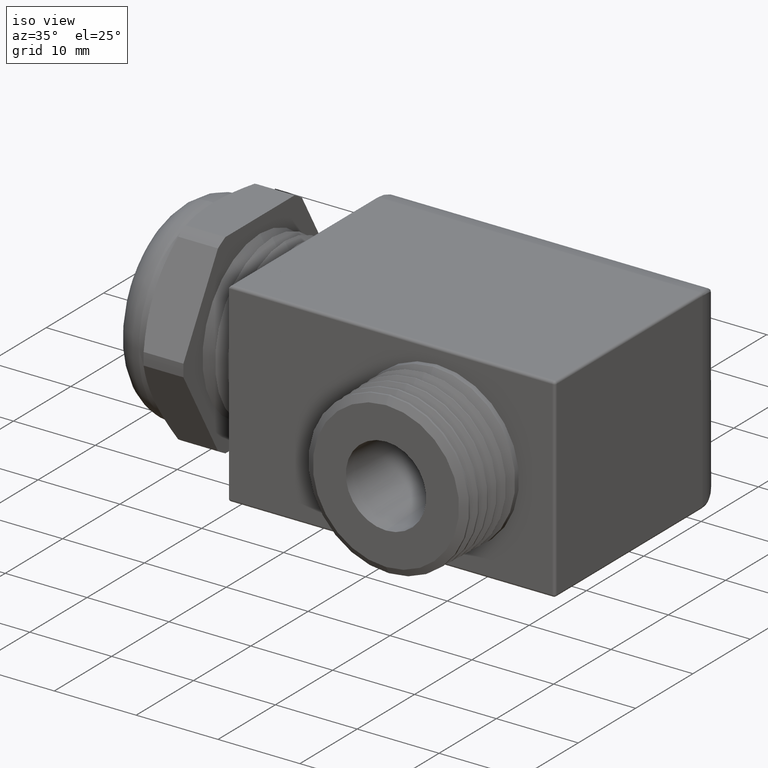
[diagram: clean part render]
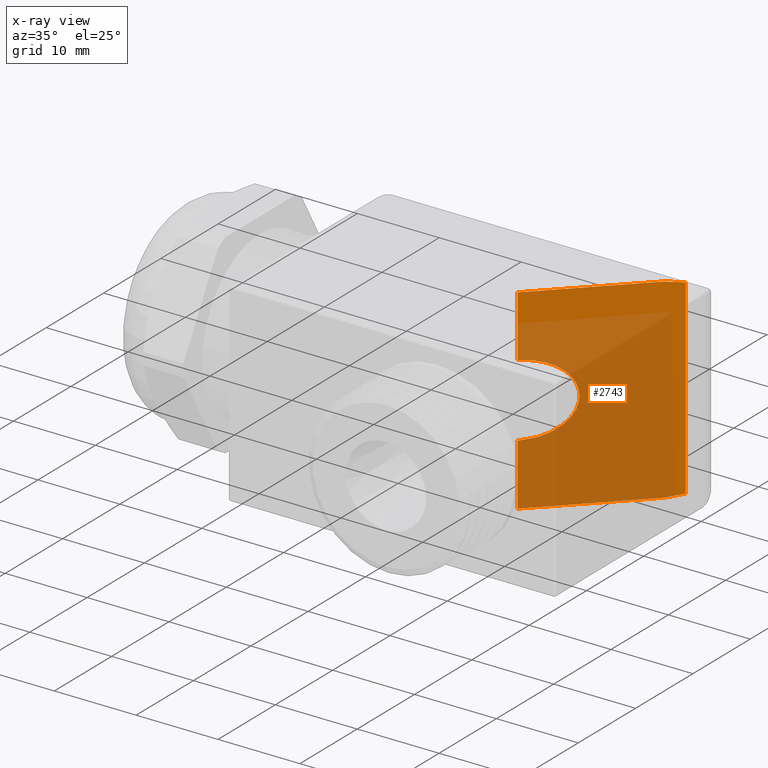
[diagram: x-ray — body ghosted, one internal face saturated and labeled with its STEP entity id]
A machine part, iso view, then the same camera in x-ray: the body is ghosted and one INTERNAL B-rep face — a face not visible from any outside direction — is saturated and labeled: STEP entity #2743.
In plain terms, the highlighted planar face has unit normal (-0.7071, 0.7071, 0).
Its self-contained STEP definition (entity closure, byte-faithful):
#152 = CARTESIAN_POINT ( 'NONE',  ( 0.9679999999999948600, 0.0000000000000000000, -0.1750000000000000700 ) ) ;
#153 = CARTESIAN_POINT ( 'NONE',  ( 0.9679999999999949800, 1.222686989034450500E-017, 0.1749999999999999900 ) ) ;
#784 = CARTESIAN_POINT ( 'NONE',  ( 1.317999999999998700, 0.3499999999999999800, -0.1749999999999999300 ) ) ;
#811 = VECTOR ( 'NONE', #839, 39.37007874015748100 ) ;
#812 = CARTESIAN_POINT ( 'NONE',  ( 1.443555555555555500, 0.4755555555555555100, -0.4703937007874016100 ) ) ;
#813 = LINE ( 'NONE', #812, #811 ) ;
#815 = DIRECTION ( 'NONE',  ( 0.0000000000000000000, 0.0000000000000000000, 1.000000000000000000 ) ) ;
#816 = VECTOR ( 'NONE', #815, 39.37007874015748100 ) ;
#824 =( BOUNDED_CURVE ( )  B_SPLINE_CURVE ( 3, ( #837, #784, #852, #851 ),
 .UNSPECIFIED., .F., .F. ) 
 B_SPLINE_CURVE_WITH_KNOTS ( ( 4, 4 ),
 ( 1.570796326794896800, 4.712388980384689700 ),
 .UNSPECIFIED. ) 
 CURVE ( )  GEOMETRIC_REPRESENTATION_ITEM ( )  RATIONAL_B_SPLINE_CURVE ( ( 1.000000000000000000, 0.3333333333333333100, 0.3333333333333333100, 1.000000000000000000 ) ) 
 REPRESENTATION_ITEM ( '' )  );
#837 = CARTESIAN_POINT ( 'NONE',  ( 0.9679999999999948600, 0.0000000000000000000, -0.1750000000000000700 ) ) ;
#839 = DIRECTION ( 'NONE',  ( 0.0000000000000000000, 0.0000000000000000000, 1.000000000000000000 ) ) ;
#843 = CARTESIAN_POINT ( 'NONE',  ( 1.443555555555555500, 0.4755555555555555100, 0.4593243544286515500 ) ) ;
#844 =( BOUNDED_CURVE ( )  B_SPLINE_CURVE ( 3, ( #869, #868, #867, #866 ),
 .UNSPECIFIED., .F., .T. ) 
 B_SPLINE_CURVE_WITH_KNOTS ( ( 4, 4 ),
 ( 1.230959417340775000, 1.570796326794896800 ),
 .UNSPECIFIED. ) 
 CURVE ( )  GEOMETRIC_REPRESENTATION_ITEM ( )  RATIONAL_B_SPLINE_CURVE ( ( 1.000000000000000000, 0.9903990397689925700, 0.9903990397689925700, 1.000000000000000000 ) ) 
 REPRESENTATION_ITEM ( '' )  );
#851 = CARTESIAN_POINT ( 'NONE',  ( 0.9679999999999949800, 1.222686989034450500E-017, 0.1749999999999999900 ) ) ;
#852 = CARTESIAN_POINT ( 'NONE',  ( 1.317999999999998700, 0.3499999999999999800, 0.1749999999999999300 ) ) ;
#854 = CARTESIAN_POINT ( 'NONE',  ( 0.9679999999999949800, -6.137788176939989100E-018, -0.4699999999999999200 ) ) ;
#864 = CARTESIAN_POINT ( 'NONE',  ( 0.9679999999999948600, 0.0000000000000000000, -0.4703937007874016100 ) ) ;
#865 = LINE ( 'NONE', #864, #816 ) ;
#866 = CARTESIAN_POINT ( 'NONE',  ( 1.381333333333332600, 0.4133333333333332700, 0.4699999999999998600 ) ) ;
#867 = CARTESIAN_POINT ( 'NONE',  ( 1.402581134423580300, 0.4345811344235809300, 0.4699999999999999200 ) ) ;
#868 = CARTESIAN_POINT ( 'NONE',  ( 1.423522936573932600, 0.4555229365739327800, 0.4664069547920676200 ) ) ;
#869 = CARTESIAN_POINT ( 'NONE',  ( 1.443555555555555500, 0.4755555555555555100, 0.4593243544286515500 ) ) ;
#870 = CARTESIAN_POINT ( 'NONE',  ( 1.218836982058541000, 0.2508369820585435500, 0.4699999999999998600 ) ) ;
#871 = LINE ( 'NONE', #870, #874 ) ;
#872 = CARTESIAN_POINT ( 'NONE',  ( 1.381333333333332600, 0.4133333333333332700, 0.4699999999999998600 ) ) ;
#873 = DIRECTION ( 'NONE',  ( 0.7071067811865512400, 0.7071067811865436900, 0.0000000000000000000 ) ) ;
#874 = VECTOR ( 'NONE', #873, 39.37007874015748900 ) ;
#896 = CARTESIAN_POINT ( 'NONE',  ( 0.9679999999999949800, -6.137788176939989100E-018, 0.4699999999999998600 ) ) ;
#900 = PLANE ( 'NONE',  #978 ) ;
#914 =( BOUNDED_CURVE ( )  B_SPLINE_CURVE ( 3, ( #966, #965, #964, #967 ),
 .UNSPECIFIED., .F., .T. ) 
 B_SPLINE_CURVE_WITH_KNOTS ( ( 4, 4 ),
 ( 4.712388980384689700, 5.052225889838811500 ),
 .UNSPECIFIED. ) 
 CURVE ( )  GEOMETRIC_REPRESENTATION_ITEM ( )  RATIONAL_B_SPLINE_CURVE ( ( 1.000000000000000000, 0.9903990397689925700, 0.9903990397689925700, 1.000000000000000000 ) ) 
 REPRESENTATION_ITEM ( '' )  );
#928 = FACE_OUTER_BOUND ( 'NONE', #2744, .T. ) ;
#943 = DIRECTION ( 'NONE',  ( -0.7071067811865512400, -0.7071067811865436900, 0.0000000000000000000 ) ) ;
#944 = VECTOR ( 'NONE', #943, 39.37007874015748900 ) ;
#945 = CARTESIAN_POINT ( 'NONE',  ( 0.9817780020556731200, 0.01377800205567809700, -0.4699999999999999200 ) ) ;
#954 = DIRECTION ( 'NONE',  ( 0.0000000000000000000, 0.0000000000000000000, 1.000000000000000000 ) ) ;
#955 = VECTOR ( 'NONE', #954, 39.37007874015748100 ) ;
#956 = CARTESIAN_POINT ( 'NONE',  ( 0.9679999999999948600, 0.0000000000000000000, -0.4703937007874016100 ) ) ;
#964 = CARTESIAN_POINT ( 'NONE',  ( 1.423522936573932600, 0.4555229365739327200, -0.4664069547920676200 ) ) ;
#965 = CARTESIAN_POINT ( 'NONE',  ( 1.402581134423580300, 0.4345811344235808200, -0.4699999999999999200 ) ) ;
#966 = CARTESIAN_POINT ( 'NONE',  ( 1.381333333333332600, 0.4133333333333332200, -0.4699999999999999200 ) ) ;
#967 = CARTESIAN_POINT ( 'NONE',  ( 1.443555555555555500, 0.4755555555555555100, -0.4593243544286517200 ) ) ;
#975 = DIRECTION ( 'NONE',  ( -0.7071067811865512400, -0.7071067811865436900, 0.0000000000000000000 ) ) ;
#976 = DIRECTION ( 'NONE',  ( -0.7071067811865438000, 0.7071067811865513500, 0.0000000000000000000 ) ) ;
#977 = CARTESIAN_POINT ( 'NONE',  ( 1.443555555555555500, 0.4755555555555555100, -0.4703937007874016100 ) ) ;
#978 = AXIS2_PLACEMENT_3D ( 'NONE', #977, #976, #975 ) ;
#979 = LINE ( 'NONE', #956, #955 ) ;
#1003 = LINE ( 'NONE', #945, #944 ) ;
#1004 = CARTESIAN_POINT ( 'NONE',  ( 1.381333333333332600, 0.4133333333333332200, -0.4699999999999999200 ) ) ;
#1005 = CARTESIAN_POINT ( 'NONE',  ( 1.443555555555555500, 0.4755555555555555100, -0.4593243544286517200 ) ) ;
#2371 = VERTEX_POINT ( 'NONE', #153 ) ;
#2372 = VERTEX_POINT ( 'NONE', #152 ) ;
#2644 = VERTEX_POINT ( 'NONE', #854 ) ;
#2645 = ORIENTED_EDGE ( 'NONE', *, *, #2646, .T. ) ;
#2646 = EDGE_CURVE ( 'NONE', #2372, #2371, #824, .T. ) ;
#2647 = ORIENTED_EDGE ( 'NONE', *, *, #2648, .T. ) ;
#2648 = EDGE_CURVE ( 'NONE', #2371, #2649, #865, .T. ) ;
#2649 = VERTEX_POINT ( 'NONE', #896 ) ;
#2650 = ORIENTED_EDGE ( 'NONE', *, *, #2651, .T. ) ;
#2651 = EDGE_CURVE ( 'NONE', #2649, #2652, #871, .T. ) ;
#2652 = VERTEX_POINT ( 'NONE', #872 ) ;
#2653 = ORIENTED_EDGE ( 'NONE', *, *, #2654, .F. ) ;
#2654 = EDGE_CURVE ( 'NONE', #2655, #2652, #844, .T. ) ;
#2655 = VERTEX_POINT ( 'NONE', #843 ) ;
#2656 = ORIENTED_EDGE ( 'NONE', *, *, #2657, .F. ) ;
#2657 = EDGE_CURVE ( 'NONE', #2747, #2655, #813, .T. ) ;
#2743 = ADVANCED_FACE ( 'NONE', ( #928 ), #900, .T. ) ;
#2744 = EDGE_LOOP ( 'NONE', ( #2745, #2645, #2647, #2650, #2653, #2656, #2748, #2751 ) ) ;
#2745 = ORIENTED_EDGE ( 'NONE', *, *, #2746, .T. ) ;
#2746 = EDGE_CURVE ( 'NONE', #2644, #2372, #979, .T. ) ;
#2747 = VERTEX_POINT ( 'NONE', #1005 ) ;
#2748 = ORIENTED_EDGE ( 'NONE', *, *, #2749, .F. ) ;
#2749 = EDGE_CURVE ( 'NONE', #2750, #2747, #914, .T. ) ;
#2750 = VERTEX_POINT ( 'NONE', #1004 ) ;
#2751 = ORIENTED_EDGE ( 'NONE', *, *, #2752, .T. ) ;
#2752 = EDGE_CURVE ( 'NONE', #2750, #2644, #1003, .T. ) ;